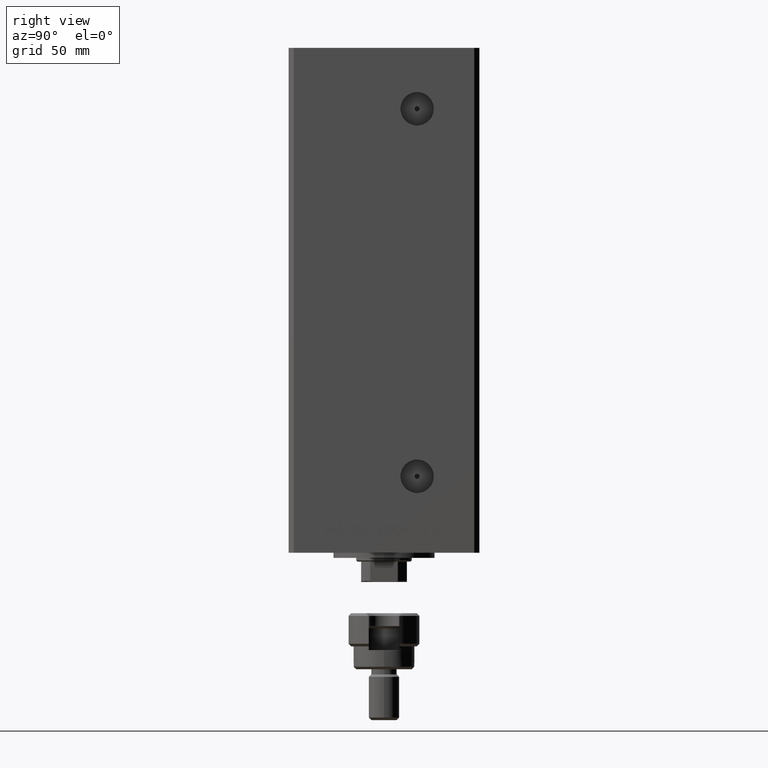
[diagram: clean part render]
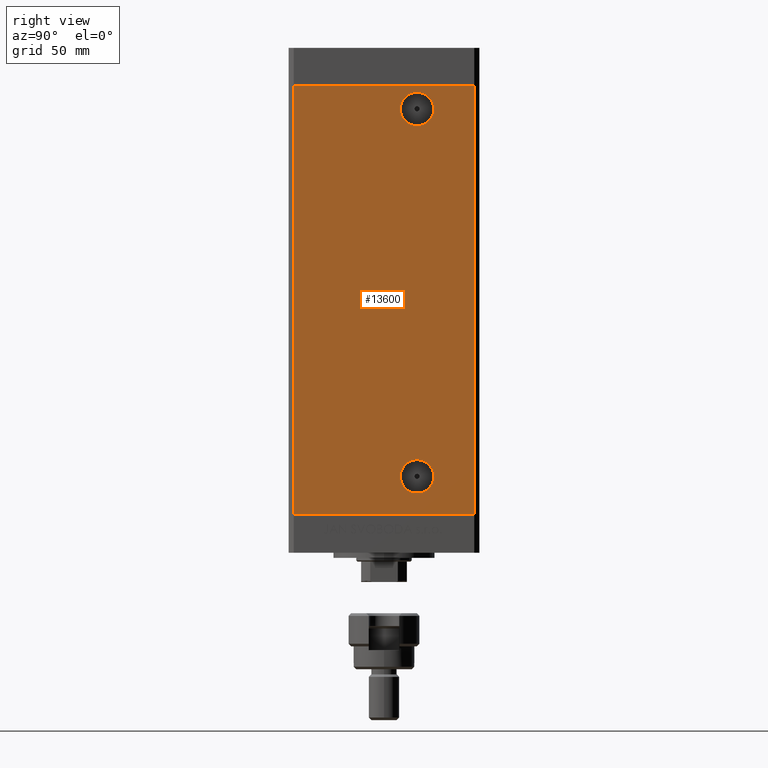
[diagram: same view with one face highlighted and labeled with its STEP entity id]
A machine part, right view. The second image highlights one B-rep face of the part: STEP entity #13600.
In plain terms, the highlighted planar face has unit normal (1, -0, 0).
Its self-contained STEP definition (entity closure, byte-faithful):
#975 = CARTESIAN_POINT ( 'NONE',  ( 42.49999999999998579, -35.50000000000000711, 168.5000000000000000 ) ) ;
#2001 = CARTESIAN_POINT ( 'NONE',  ( 42.49999999999999289, 13.00000000000000000, 15.00000000000001421 ) ) ;
#2839 = ORIENTED_EDGE ( 'NONE', *, *, #48053, .F. ) ;
#3258 = DIRECTION ( 'NONE',  ( 0.000000000000000000, 1.000000000000000000, 0.000000000000000000 ) ) ;
#4283 = ORIENTED_EDGE ( 'NONE', *, *, #18154, .F. ) ;
#6228 = ORIENTED_EDGE ( 'NONE', *, *, #20587, .F. ) ;
#6682 = CIRCLE ( 'NONE', #22188, 6.580000000000008065 ) ;
#7078 = CARTESIAN_POINT ( 'NONE',  ( 42.49999999999999289, 13.00000000000000000, 15.00000000000001421 ) ) ;
#8959 = DIRECTION ( 'NONE',  ( 0.000000000000000000, 1.000000000000000000, 0.000000000000000000 ) ) ;
#12402 = EDGE_CURVE ( 'NONE', #22903, #23108, #17906, .T. ) ;
#12635 = LINE ( 'NONE', #39653, #28076 ) ;
#12671 = VECTOR ( 'NONE', #14020, 1000.000000000000000 ) ;
#12707 = CARTESIAN_POINT ( 'NONE',  ( 42.49999999999999289, 6.419999999999993712, 15.00000000000001421 ) ) ;
#13450 = ORIENTED_EDGE ( 'NONE', *, *, #44710, .F. ) ;
#13600 = ADVANCED_FACE ( 'NONE', ( #34883, #16001, #15755 ), #50450, .T. ) ;
#13776 = VERTEX_POINT ( 'NONE', #22337 ) ;
#14020 = DIRECTION ( 'NONE',  ( -2.931927001650941360E-16, -1.000000000000000000, 0.000000000000000000 ) ) ;
#14417 = CARTESIAN_POINT ( 'NONE',  ( 42.49999999999998579, -35.50000000000000711, 168.5000000000000000 ) ) ;
#14808 = VECTOR ( 'NONE', #19541, 1000.000000000000000 ) ;
#15345 = EDGE_LOOP ( 'NONE', ( #13450, #35147 ) ) ;
#15755 = FACE_OUTER_BOUND ( 'NONE', #48906, .T. ) ;
#15972 = CARTESIAN_POINT ( 'NONE',  ( 42.50000000000000711, 35.50000000000001421, 0.000000000000000000 ) ) ;
#16001 = FACE_BOUND ( 'NONE', #15345, .T. ) ;
#16902 = VERTEX_POINT ( 'NONE', #17357 ) ;
#17357 = CARTESIAN_POINT ( 'NONE',  ( 42.49999999999998579, -35.50000000000000711, 0.000000000000000000 ) ) ;
#17850 = CARTESIAN_POINT ( 'NONE',  ( 42.50000000000000711, 35.50000000000001421, 168.5000000000000000 ) ) ;
#17906 = CIRCLE ( 'NONE', #44804, 6.580000000000014282 ) ;
#18154 = EDGE_CURVE ( 'NONE', #35548, #20259, #6682, .T. ) ;
#18884 = CARTESIAN_POINT ( 'NONE',  ( 42.49999999999999289, 13.00000000000000000, 159.5000000000000000 ) ) ;
#18965 = CARTESIAN_POINT ( 'NONE',  ( 42.50000000000000711, 35.50000000000001421, 0.000000000000000000 ) ) ;
#19541 = DIRECTION ( 'NONE',  ( -2.931927001650941360E-16, -1.000000000000000000, 0.000000000000000000 ) ) ;
#20259 = VERTEX_POINT ( 'NONE', #12707 ) ;
#20587 = EDGE_CURVE ( 'NONE', #23799, #16902, #23129, .T. ) ;
#21863 = DIRECTION ( 'NONE',  ( 1.000000000000000000, -2.275047181608927644E-16, 0.000000000000000000 ) ) ;
#22188 = AXIS2_PLACEMENT_3D ( 'NONE', #2001, #21863, #36922 ) ;
#22337 = CARTESIAN_POINT ( 'NONE',  ( 42.50000000000000711, 35.50000000000001421, 168.5000000000000000 ) ) ;
#22903 = VERTEX_POINT ( 'NONE', #47787 ) ;
#23108 = VERTEX_POINT ( 'NONE', #32368 ) ;
#23129 = LINE ( 'NONE', #15972, #14808 ) ;
#23645 = CARTESIAN_POINT ( 'NONE',  ( 42.49999999999999289, 19.58000000000000540, 15.00000000000001421 ) ) ;
#23799 = VERTEX_POINT ( 'NONE', #18965 ) ;
#24755 = CARTESIAN_POINT ( 'NONE',  ( 42.49999999999999289, 13.00000000000000000, 159.5000000000000000 ) ) ;
#25848 = EDGE_CURVE ( 'NONE', #20259, #35548, #33717, .T. ) ;
#26528 = DIRECTION ( 'NONE',  ( 0.000000000000000000, 1.000000000000000000, 0.000000000000000000 ) ) ;
#26700 = DIRECTION ( 'NONE',  ( 1.000000000000000000, -2.275047181608927644E-16, 0.000000000000000000 ) ) ;
#28076 = VECTOR ( 'NONE', #47824, 1000.000000000000000 ) ;
#28587 = DIRECTION ( 'NONE',  ( 1.000000000000000000, -2.275047181608927644E-16, 0.000000000000000000 ) ) ;
#29629 = EDGE_CURVE ( 'NONE', #13776, #44841, #30059, .T. ) ;
#30059 = LINE ( 'NONE', #17850, #12671 ) ;
#30519 = ORIENTED_EDGE ( 'NONE', *, *, #25848, .F. ) ;
#31539 = DIRECTION ( 'NONE',  ( 1.000000000000000000, -2.931927001650941360E-16, 0.000000000000000000 ) ) ;
#32164 = AXIS2_PLACEMENT_3D ( 'NONE', #24755, #28587, #8959 ) ;
#32368 = CARTESIAN_POINT ( 'NONE',  ( 42.49999999999999289, 19.58000000000001251, 159.5000000000000000 ) ) ;
#33537 = DIRECTION ( 'NONE',  ( -0.000000000000000000, -0.000000000000000000, -1.000000000000000000 ) ) ;
#33717 = CIRCLE ( 'NONE', #49205, 6.580000000000008065 ) ;
#33810 = CIRCLE ( 'NONE', #32164, 6.580000000000014282 ) ;
#34037 = LINE ( 'NONE', #14417, #46768 ) ;
#34883 = FACE_BOUND ( 'NONE', #39264, .T. ) ;
#35147 = ORIENTED_EDGE ( 'NONE', *, *, #12402, .F. ) ;
#35548 = VERTEX_POINT ( 'NONE', #23645 ) ;
#35860 = AXIS2_PLACEMENT_3D ( 'NONE', #39694, #31539, #46617 ) ;
#36922 = DIRECTION ( 'NONE',  ( 0.000000000000000000, 1.000000000000000000, 0.000000000000000000 ) ) ;
#38477 = ORIENTED_EDGE ( 'NONE', *, *, #46359, .T. ) ;
#39264 = EDGE_LOOP ( 'NONE', ( #4283, #30519 ) ) ;
#39653 = CARTESIAN_POINT ( 'NONE',  ( 42.50000000000000711, 35.50000000000001421, 168.5000000000000000 ) ) ;
#39694 = CARTESIAN_POINT ( 'NONE',  ( 42.50000000000000711, 35.50000000000001421, 168.5000000000000000 ) ) ;
#44710 = EDGE_CURVE ( 'NONE', #23108, #22903, #33810, .T. ) ;
#44804 = AXIS2_PLACEMENT_3D ( 'NONE', #18884, #46423, #26528 ) ;
#44841 = VERTEX_POINT ( 'NONE', #975 ) ;
#46359 = EDGE_CURVE ( 'NONE', #44841, #16902, #34037, .T. ) ;
#46423 = DIRECTION ( 'NONE',  ( 1.000000000000000000, -2.275047181608927644E-16, 0.000000000000000000 ) ) ;
#46617 = DIRECTION ( 'NONE',  ( 2.931927001650941360E-16, 1.000000000000000000, 0.000000000000000000 ) ) ;
#46768 = VECTOR ( 'NONE', #33537, 1000.000000000000000 ) ;
#47787 = CARTESIAN_POINT ( 'NONE',  ( 42.49999999999999289, 6.419999999999983942, 159.5000000000000000 ) ) ;
#47824 = DIRECTION ( 'NONE',  ( -0.000000000000000000, -0.000000000000000000, -1.000000000000000000 ) ) ;
#48053 = EDGE_CURVE ( 'NONE', #13776, #23799, #12635, .T. ) ;
#48906 = EDGE_LOOP ( 'NONE', ( #6228, #2839, #49262, #38477 ) ) ;
#49205 = AXIS2_PLACEMENT_3D ( 'NONE', #7078, #26700, #3258 ) ;
#49262 = ORIENTED_EDGE ( 'NONE', *, *, #29629, .T. ) ;
#50450 = PLANE ( 'NONE',  #35860 ) ;